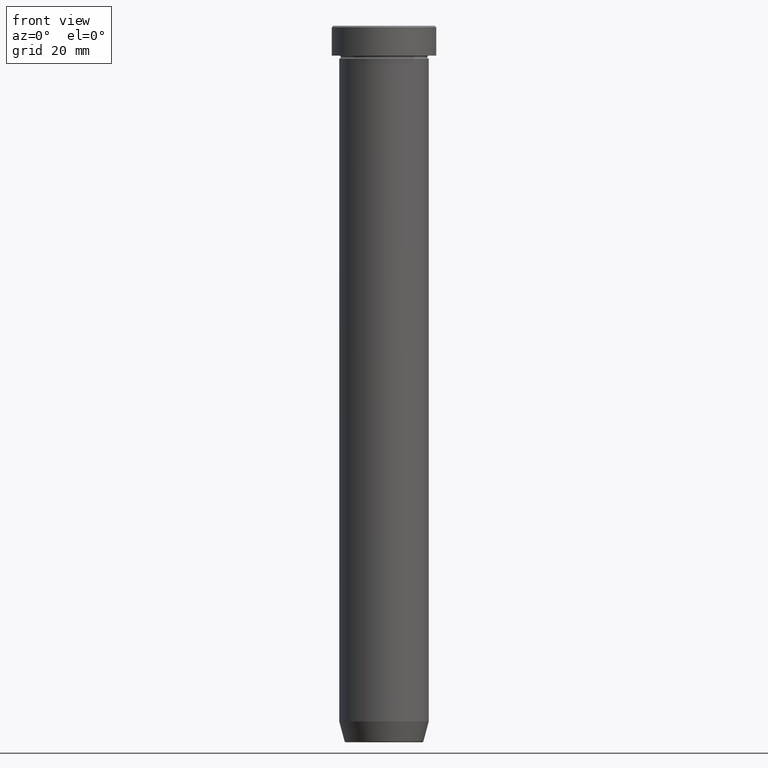
[diagram: clean part render]
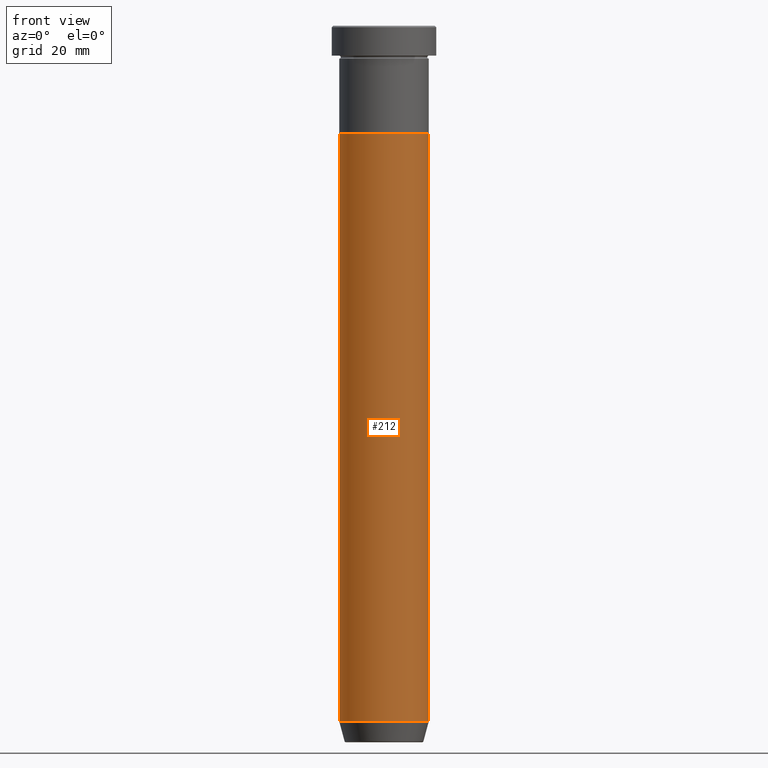
[diagram: same view with one face highlighted and labeled with its STEP entity id]
A machine part, front view. The second image highlights one B-rep face of the part: STEP entity #212.
In plain terms, the highlighted cylindrical surface (partial cylindrical patch) has radius 15 mm, axis along (-0, -0, 1).
Its self-contained STEP definition (entity closure, byte-faithful):
#4 = CARTESIAN_POINT ( 'NONE',  ( -15.00000000000000000, 1.836970198721029589E-15, 0.000000000000000000 ) ) ;
#55 = CARTESIAN_POINT ( 'NONE',  ( -15.00000000000000000, 1.836970198721029589E-15, -36.00000000000000000 ) ) ;
#79 = DIRECTION ( 'NONE',  ( -0.000000000000000000, -0.000000000000000000, 1.000000000000000000 ) ) ;
#80 = CARTESIAN_POINT ( 'NONE',  ( 15.00000000000000178, 0.000000000000000000, -232.9999999999999716 ) ) ;
#81 = EDGE_CURVE ( 'NONE', #583, #122, #232, .T. ) ;
#122 = VERTEX_POINT ( 'NONE', #420 ) ;
#158 = EDGE_CURVE ( 'NONE', #430, #583, #279, .T. ) ;
#159 = ORIENTED_EDGE ( 'NONE', *, *, #81, .T. ) ;
#170 = VECTOR ( 'NONE', #374, 1000.000000000000000 ) ;
#178 = DIRECTION ( 'NONE',  ( 1.000000000000000000, 0.000000000000000000, 0.000000000000000000 ) ) ;
#185 = DIRECTION ( 'NONE',  ( 1.000000000000000000, 0.000000000000000000, 0.000000000000000000 ) ) ;
#186 = DIRECTION ( 'NONE',  ( 1.000000000000000000, 0.000000000000000000, 0.000000000000000000 ) ) ;
#192 = DIRECTION ( 'NONE',  ( -0.000000000000000000, -0.000000000000000000, 1.000000000000000000 ) ) ;
#212 = ADVANCED_FACE ( 'NONE', ( #273 ), #226, .T. ) ;
#226 = CYLINDRICAL_SURFACE ( 'NONE', #529, 15.00000000000000000 ) ;
#232 = LINE ( 'NONE', #424, #170 ) ;
#270 = AXIS2_PLACEMENT_3D ( 'NONE', #278, #598, #186 ) ;
#273 = FACE_OUTER_BOUND ( 'NONE', #505, .T. ) ;
#276 = CARTESIAN_POINT ( 'NONE',  ( 0.000000000000000000, 0.000000000000000000, 0.000000000000000000 ) ) ;
#278 = CARTESIAN_POINT ( 'NONE',  ( 0.000000000000000000, 0.000000000000000000, -36.00000000000000000 ) ) ;
#279 = CIRCLE ( 'NONE', #562, 15.00000000000000178 ) ;
#339 = VERTEX_POINT ( 'NONE', #55 ) ;
#341 = EDGE_CURVE ( 'NONE', #430, #339, #520, .T. ) ;
#361 = CARTESIAN_POINT ( 'NONE',  ( 0.000000000000000000, 0.000000000000000000, -232.9999999999999716 ) ) ;
#374 = DIRECTION ( 'NONE',  ( -0.000000000000000000, -0.000000000000000000, 1.000000000000000000 ) ) ;
#393 = VECTOR ( 'NONE', #192, 1000.000000000000000 ) ;
#401 = DIRECTION ( 'NONE',  ( -0.000000000000000000, -0.000000000000000000, 1.000000000000000000 ) ) ;
#420 = CARTESIAN_POINT ( 'NONE',  ( 15.00000000000000000, 0.000000000000000000, -36.00000000000000000 ) ) ;
#424 = CARTESIAN_POINT ( 'NONE',  ( 15.00000000000000000, 0.000000000000000000, 0.000000000000000000 ) ) ;
#430 = VERTEX_POINT ( 'NONE', #556 ) ;
#444 = ORIENTED_EDGE ( 'NONE', *, *, #569, .F. ) ;
#505 = EDGE_LOOP ( 'NONE', ( #534, #565, #159, #444 ) ) ;
#520 = LINE ( 'NONE', #4, #393 ) ;
#529 = AXIS2_PLACEMENT_3D ( 'NONE', #276, #401, #178 ) ;
#530 = CIRCLE ( 'NONE', #270, 15.00000000000000000 ) ;
#534 = ORIENTED_EDGE ( 'NONE', *, *, #341, .F. ) ;
#556 = CARTESIAN_POINT ( 'NONE',  ( -15.00000000000000355, 1.836970198721029983E-15, -232.9999999999999716 ) ) ;
#562 = AXIS2_PLACEMENT_3D ( 'NONE', #361, #79, #185 ) ;
#565 = ORIENTED_EDGE ( 'NONE', *, *, #158, .T. ) ;
#569 = EDGE_CURVE ( 'NONE', #339, #122, #530, .T. ) ;
#583 = VERTEX_POINT ( 'NONE', #80 ) ;
#598 = DIRECTION ( 'NONE',  ( -0.000000000000000000, -0.000000000000000000, 1.000000000000000000 ) ) ;